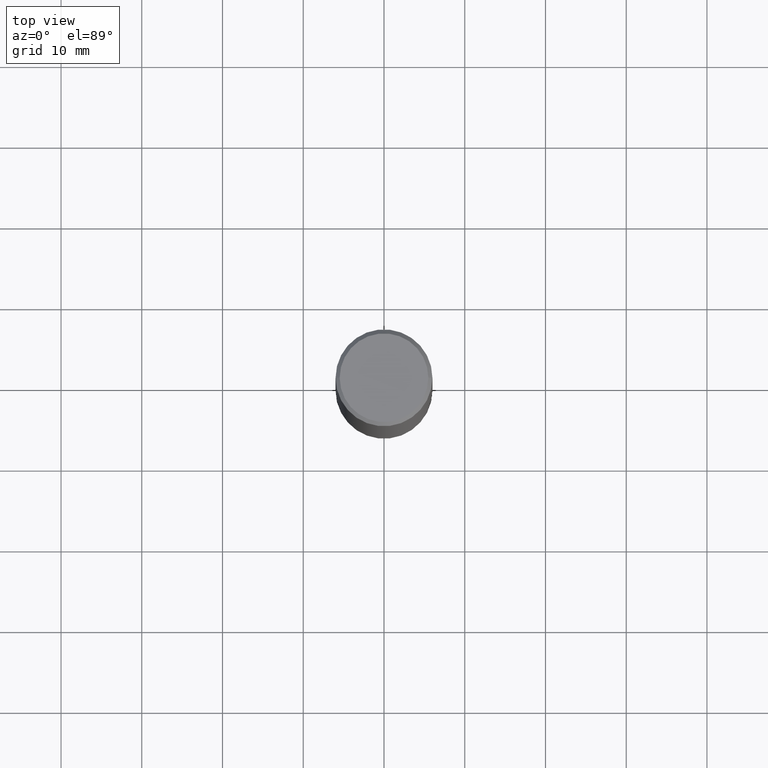
[diagram: clean part render]
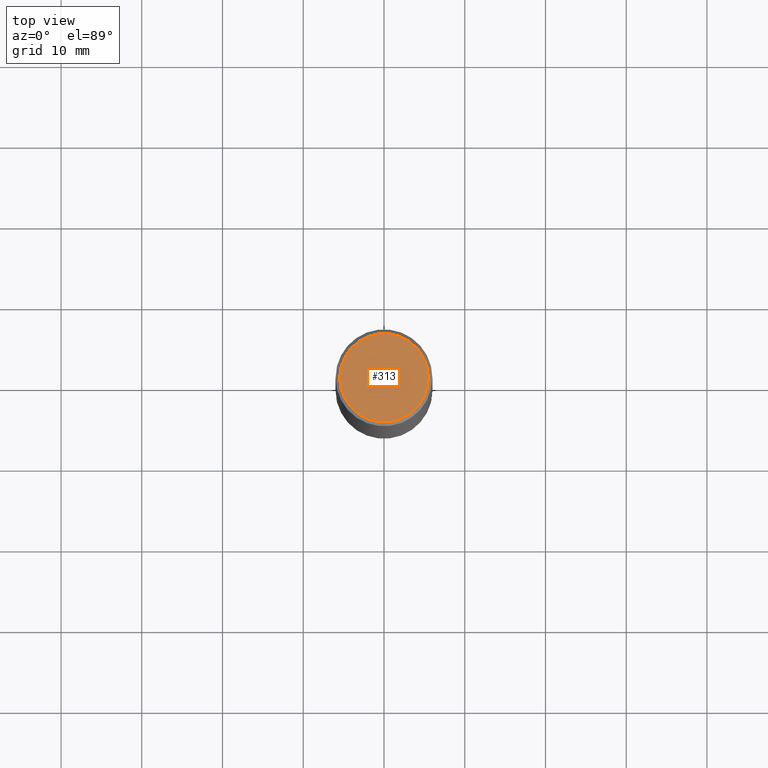
[diagram: same view with one face highlighted and labeled with its STEP entity id]
A machine part, top view. The second image highlights one B-rep face of the part: STEP entity #313.
In plain terms, the highlighted planar face has unit normal (0, -0, -1).
Its self-contained STEP definition (entity closure, byte-faithful):
#5 = CARTESIAN_POINT ( 'NONE',  ( -1.043851414335219820E-46, 1.490343170380447200E-32, 4.268512490100411279E-18 ) ) ;
#9 = PLANE ( 'NONE',  #190 ) ;
#59 = CARTESIAN_POINT ( 'NONE',  ( 0.2161999999999997535, -1.586759460484350410E-15, 4.268512490111238857E-18 ) ) ;
#67 = CIRCLE ( 'NONE', #363, 0.2161999999999997535 ) ;
#77 = ORIENTED_EDGE ( 'NONE', *, *, #130, .T. ) ;
#109 = ORIENTED_EDGE ( 'NONE', *, *, #170, .T. ) ;
#114 = VERTEX_POINT ( 'NONE', #59 ) ;
#128 = CARTESIAN_POINT ( 'NONE',  ( 1.509716530915769140E-15, 0.2161999999999997535, -7.527240092128371176E-16 ) ) ;
#130 = EDGE_CURVE ( 'NONE', #114, #183, #181, .T. ) ;
#143 = CARTESIAN_POINT ( 'NONE',  ( -0.2161999999999997535, 1.544631344304200395E-15, 4.268512490089730842E-18 ) ) ;
#170 = EDGE_CURVE ( 'NONE', #183, #114, #67, .T. ) ;
#181 = CIRCLE ( 'NONE', #338, 0.2161999999999997535 ) ;
#183 = VERTEX_POINT ( 'NONE', #143 ) ;
#190 = AXIS2_PLACEMENT_3D ( 'NONE', #128, #211, #241 ) ;
#207 = DIRECTION ( 'NONE',  ( 1.000000000000000000, -6.982962677686267499E-15, 4.876217060660161280E-29 ) ) ;
#211 = DIRECTION ( 'NONE',  ( 2.438088387897960049E-29, -3.491481338843145188E-15, -1.000000000000000000 ) ) ;
#233 = DIRECTION ( 'NONE',  ( -2.445468806185136597E-29, 3.491481338843145583E-15, 1.000000000000000000 ) ) ;
#241 = DIRECTION ( 'NONE',  ( -1.000000000000000000, 6.982962677686265922E-15, -4.876176775795935793E-29 ) ) ;
#260 = EDGE_LOOP ( 'NONE', ( #109, #77 ) ) ;
#298 = FACE_OUTER_BOUND ( 'NONE', #260, .T. ) ;
#313 = ADVANCED_FACE ( 'NONE', ( #298 ), #9, .F. ) ;
#315 = DIRECTION ( 'NONE',  ( -2.445468806185136597E-29, 3.491481338843145583E-15, 1.000000000000000000 ) ) ;
#317 = CARTESIAN_POINT ( 'NONE',  ( -1.043851414335219820E-46, 1.490343170380447200E-32, 4.268512490100411279E-18 ) ) ;
#338 = AXIS2_PLACEMENT_3D ( 'NONE', #5, #315, #362 ) ;
#362 = DIRECTION ( 'NONE',  ( 1.000000000000000000, -6.982962677686267499E-15, 4.876217060660161280E-29 ) ) ;
#363 = AXIS2_PLACEMENT_3D ( 'NONE', #317, #233, #207 ) ;